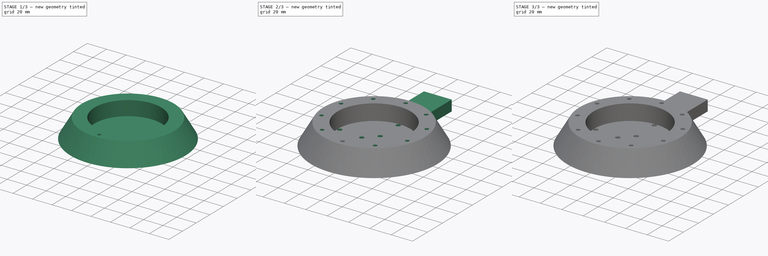
[diagram: build sequence overview — one tinted view per stage of 3, left to right]
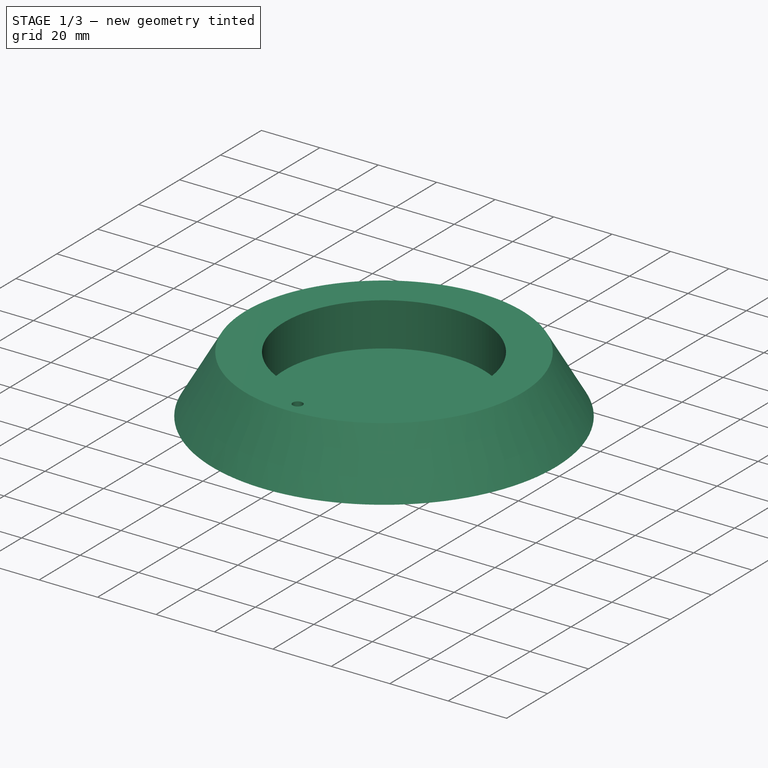
[diagram: stage 1 of 3 — iso view after this stage's code; geometry added in this stage tinted green]
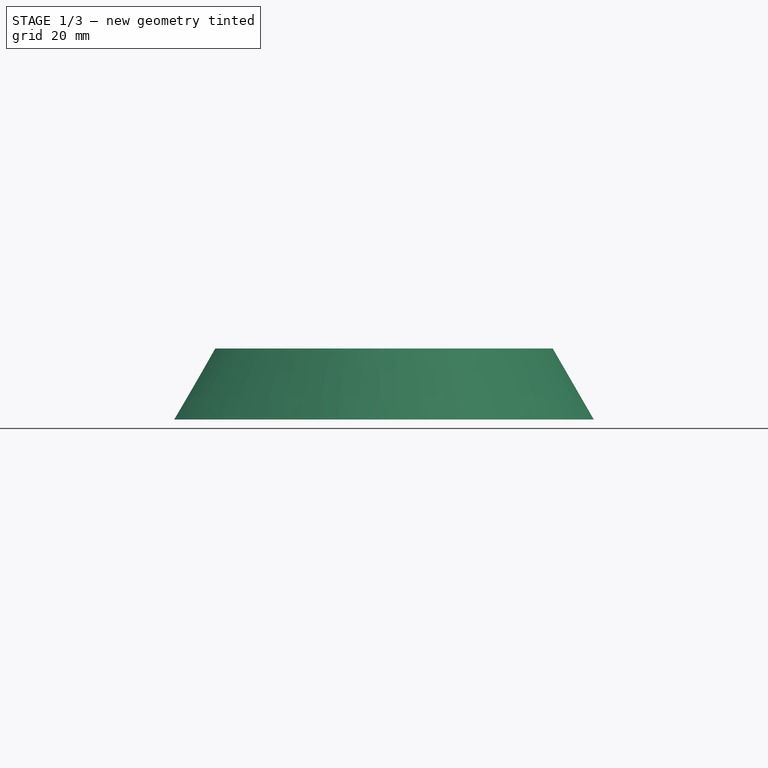
[diagram: stage 1 of 3 — front view after this stage's code; geometry added in this stage tinted green]
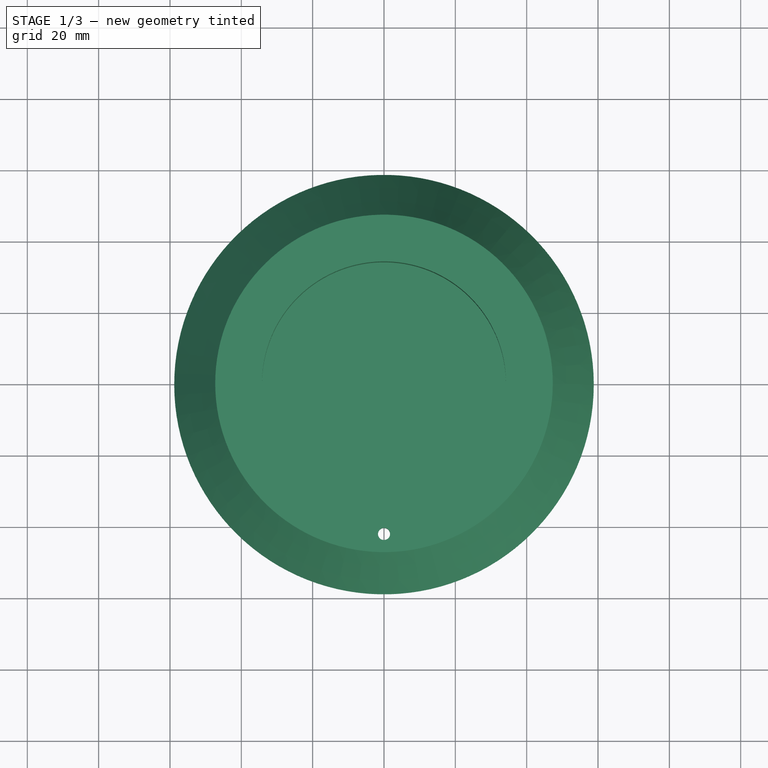
[diagram: stage 1 of 3 — top view after this stage's code; geometry added in this stage tinted green]
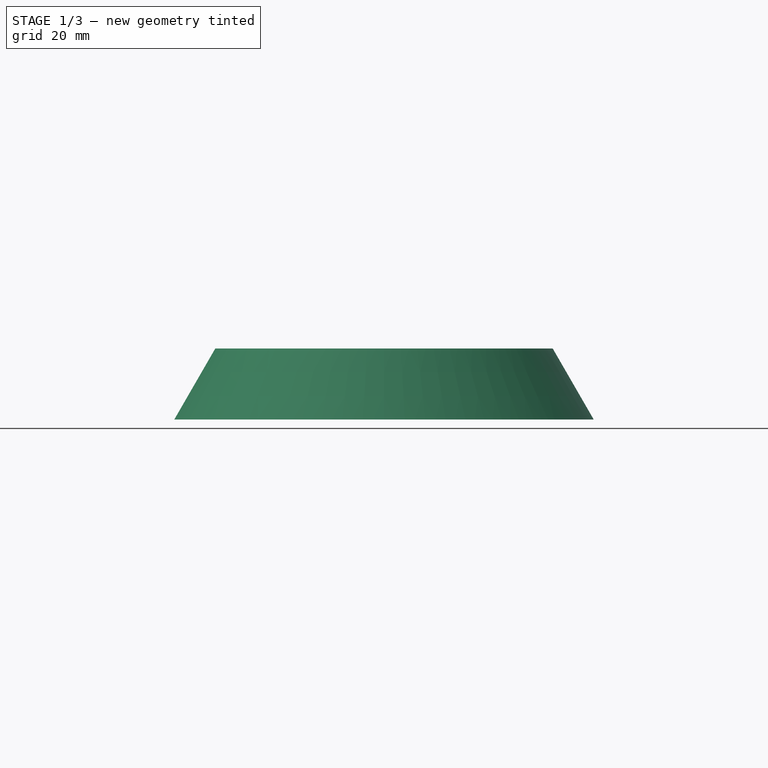
[diagram: stage 1 of 3 — right view after this stage's code; geometry added in this stage tinted green]
FCSTD DOCUMENT  (FreeCAD 1.0R39109 (Git))
Label: Stevensen Base - Custom
Comment: This file was created as a modification of the misol_stevenson_screen_bottom.STL, created by musgos, posted on Thingiverse as item 4153206 and released under a CC BY 4.0 license
License: Creative Commons Attribution-ShareAlike 4.0
LicenseURL: https://creativecommons.org/licenses/by-sa/4.0/
objects: Sketcher::SketchObject×5, PartDesign::Pocket×2, PartDesign::Revolution×1, PartDesign::Hole×1, PartDesign::PolarPattern×1, PartDesign::Pad×1, PartDesign::Fillet×1, PartDesign::Body×1
note: 31 computed .brp shape members not serialized (recipe doc carries the construction recipe); baked Part::Feature solids carry a one-line shape summary decoded from their .brp

FEATURE [Sketcher::SketchObject] Sketch
  ArcFitTolerance = 1e-06
  AttachmentSupport = -> [XZ_Plane]
  FullyConstrained = true
  MakeInternals = false
  MapMode = 5
  Placement = pos=(0,0,0) rot=(1,0,0;1.5708rad)
  sketch-geometry (8):
    g0: LineSegment [constr] StartX=-47.3161 StartY=19.9 StartZ=0 EndX=47.3161 EndY=19.9 EndZ=0
    g1: GeomPoint X=0 Y=19.9 Z=0
    g2: LineSegment StartX=47.3161 StartY=19.9 StartZ=0 EndX=58.81 EndY=0 EndZ=0
    g3: LineSegment StartX=58.81 StartY=0 StartZ=0 EndX=0 EndY=0 EndZ=0
    g4: LineSegment StartX=0 StartY=0 StartZ=0 EndX=0 EndY=5 EndZ=0
    g5: LineSegment StartX=0 StartY=5 StartZ=0 EndX=34.2085 EndY=5 EndZ=0
    g6: LineSegment StartX=34.2085 StartY=5 StartZ=0 EndX=34.2085 EndY=19.9 EndZ=0
    g7: LineSegment StartX=34.2085 StartY=19.9 StartZ=0 EndX=47.3161 EndY=19.9 EndZ=0
  constraints (22):
    c: Horizontal(g0)
    c: Symmetric(g0,g0,g1)
    c: Coincident(g2,g0)
    c: Coincident(g3,g2)
    c: Horizontal(g3)
    c: DistanceX(g3,g3) = 58.81
    c: DistanceY(g3,g1) = 19.9
    c: Angle(g2) = -1.04702
    c: Coincident(g3,g-1)
    c: Coincident(g4,g3)
    c: Horizontal(g5)
    c: Coincident(g6,g5)
    c: PointOnObject(g6,g0)
    c: Vertical(g6)
    c: Coincident(g7,g6)
    c: Coincident(g7,g0)
    c: DistanceY(g4,g4) = 5
    c: Coincident(g5,g4)
    c: Vertical(g4)
    c: PointOnObject(g1,g-2)
    c: DistanceX(g5,g5) = 34.2085
    c: DistanceY(g5,g6) = 14.9
FEATURE [PartDesign::Revolution] Revolution
  Angle = 360
  Angle2 = 60
  Axis = (0,2e-16,1)
  Base = (0,0,0)
  Placement = pos=(0,0,0) rot=(1,0,0;1.5708rad)
  Profile = -> Sketch
  ReferenceAxis = -> Sketch [V_Axis]
  Reversed = true
  Suppressed = false
  Type = 0
FEATURE [Sketcher::SketchObject] Sketch001
  ArcFitTolerance = 1e-06
  AttachmentSupport = -> [Revolution]
  FullyConstrained = true
  MakeInternals = false
  MapMode = 5
  Placement = pos=(0,0,0) rot=(1,0,0;3.14159rad)
  sketch-geometry (1):
    g0: Circle CenterX=0 CenterY=42.2085 CenterZ=0 NormalX=0 NormalY=0 NormalZ=1 AngleXU=0 Radius=2
  constraints (3):
    c: PointOnObject(g0,g-2)
    c: Diameter(g0) = 4
    c: DistanceY(g-1,g0) = 42.2085
FEATURE [PartDesign::Hole] Hole
  BaseFeature = -> Revolution
  CustomThreadClearance = 0
  Depth = 25
  DepthType = 0
  Diameter = 3.4
  DrillForDepth = false
  DrillPoint = 1
  DrillPointAngle = 118
  HoleCutCountersinkAngle = 90
  HoleCutCustomValues = false
  HoleCutDepth = 14.9
  HoleCutDiameter = 6
  HoleCutType = 1
  ModelThread = false
  Placement = pos=(0,0,0) rot=(1,0,0;1.5708rad)
  Profile = -> Sketch001
  Suppressed = false
  Tapered = false
  TaperedAngle = 90
  ThreadClass = 0
  ThreadDepth = 25
  ThreadDepthType = 0
  ThreadDirection = 0
  ThreadFit = 0
  ThreadSize = 0
  ThreadType = 0
  Threaded = false
  UseCustomThreadClearance = false
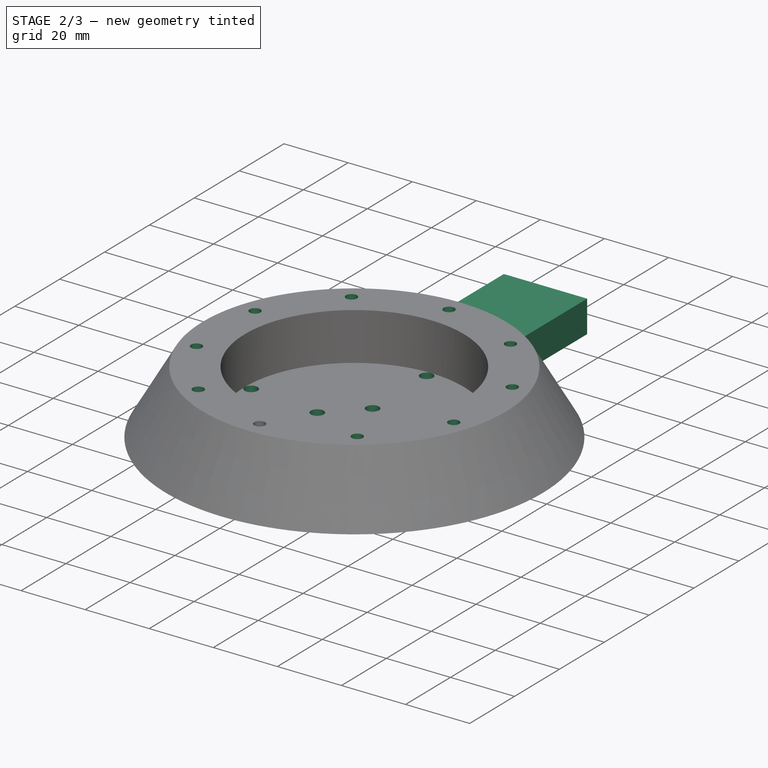
[diagram: stage 2 of 3 — iso view after this stage's code; geometry added in this stage tinted green]
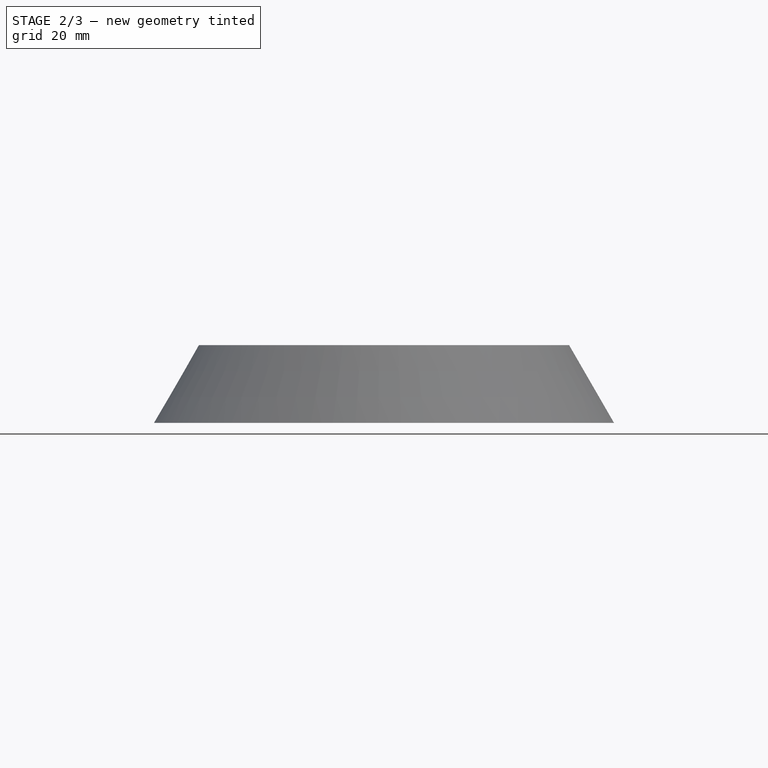
[diagram: stage 2 of 3 — front view after this stage's code; geometry added in this stage tinted green]
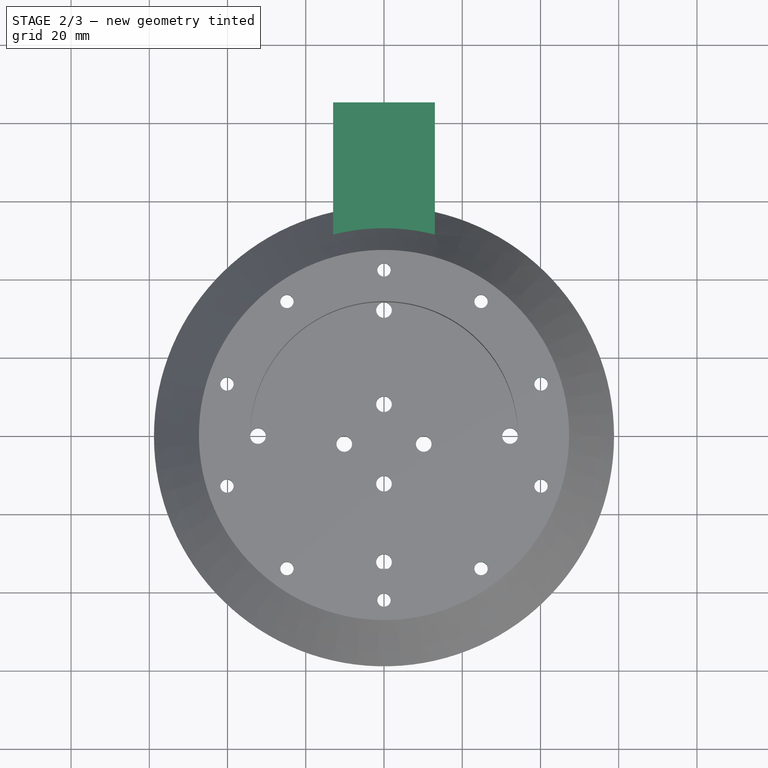
[diagram: stage 2 of 3 — top view after this stage's code; geometry added in this stage tinted green]
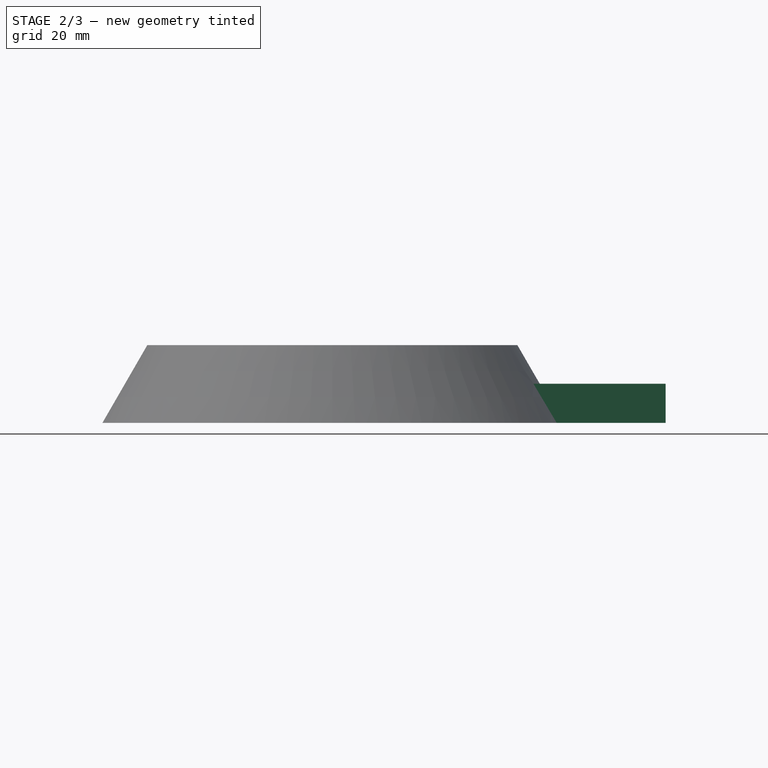
[diagram: stage 2 of 3 — right view after this stage's code; geometry added in this stage tinted green]
FEATURE [PartDesign::PolarPattern] PolarPattern
  Angle = 360
  Axis = -> Sketch001 [N_Axis]
  BaseFeature = -> Hole
  Mode = 0
  Occurrences = 10
  Offset = 120
  Originals = -> [Hole]
  Placement = pos=(0,0,0) rot=(1,0,0;1.5708rad)
  Suppressed = false
  TransformMode = 0
FEATURE [Sketcher::SketchObject] Sketch002
  ArcFitTolerance = 1e-06
  AttachmentOffset = pos=(0,0,-45.2) rot=(0,0,1;0rad)
  AttachmentSupport = -> [XZ_Plane]
  ExternalGeometry = -> [PolarPattern]
  FullyConstrained = true
  MakeInternals = false
  MapMode = 5
  Placement = pos=(0,45.2,-1e-14) rot=(1,0,0;1.5708rad)
  sketch-geometry (5):
    g0: LineSegment StartX=13 StartY=10 StartZ=0 EndX=-13 EndY=10 EndZ=0
    g1: LineSegment StartX=-13 StartY=10 StartZ=0 EndX=-13 EndY=0 EndZ=0
    g2: LineSegment StartX=-13 StartY=0 StartZ=0 EndX=13 EndY=0 EndZ=0
    g3: LineSegment StartX=13 StartY=0 StartZ=0 EndX=13 EndY=10 EndZ=0
    g4: GeomPoint [constr] X=0 Y=5 Z=0
  constraints (13):
    c: Coincident(g0,g1)
    c: Coincident(g1,g2)
    c: Coincident(g2,g3)
    c: Coincident(g3,g0)
    c: Horizontal(g0)
    c: Horizontal(g2)
    c: Vertical(g1)
    c: Vertical(g3)
    c: Symmetric(g2,g0,g4)
    c: PointOnObject(g4,g-2)
    c: Horizontal(g1,g-4)
    c: DistanceX(g2,g2) = 26
    c: DistanceY(g1,g1) = 10
FEATURE [PartDesign::Pad] Pad
  BaseFeature = -> PolarPattern
  Direction = (0,-1,2e-16)
  Length = 40
  Length2 = 10
  Placement = pos=(0,0,0) rot=(1,0,0;1.5708rad)
  Profile = -> Sketch002
  ReferenceAxis = -> Sketch002 [N_Axis]
  Reversed = true
  Suppressed = false
  Type = 0
FEATURE [Sketcher::SketchObject] Sketch003
  ArcFitTolerance = 1e-06
  AttachmentSupport = -> [Pad]
  ExternalGeometry = -> [Pad]
  FullyConstrained = true
  MakeInternals = false
  MapMode = 5
  Placement = pos=(0,2.2e-15,5) rot=(0,0,1;3.14159rad)
  sketch-geometry (17):
    g0: Circle [constr] CenterX=0 CenterY=0 CenterZ=0 NormalX=0 NormalY=0 NormalZ=1 AngleXU=0 Radius=24.622
    g1: LineSegment [constr] StartX=-15.24 StartY=17.27 StartZ=0 EndX=-15.24 EndY=-17.27 EndZ=0
    g2: LineSegment [constr] StartX=-15.24 StartY=-17.27 StartZ=0 EndX=15.24 EndY=-17.27 EndZ=0
    g3: LineSegment [constr] StartX=15.24 StartY=-17.27 StartZ=0 EndX=15.24 EndY=17.27 EndZ=0
    g4: LineSegment [constr] StartX=15.24 StartY=17.27 StartZ=0 EndX=-15.24 EndY=17.27 EndZ=0
    g5: GeomPoint [constr] X=0 Y=0 Z=0
    g6: LineSegment [constr] StartX=-15.24 StartY=-13.21 StartZ=0 EndX=15.24 EndY=-13.21 EndZ=0
    g7: Circle CenterX=0 CenterY=12.19 CenterZ=0 NormalX=0 NormalY=0 NormalZ=1 AngleXU=0 Radius=2
    g8: Circle CenterX=1.1e-15 CenterY=-8.13 CenterZ=0 NormalX=0 NormalY=0 NormalZ=1 AngleXU=0 Radius=2
    g9: Circle CenterX=-10.16 CenterY=2.03 CenterZ=0 NormalX=0 NormalY=0 NormalZ=1 AngleXU=0 Radius=2
    g10: Circle CenterX=10.16 CenterY=2.03 CenterZ=0 NormalX=0 NormalY=0 NormalZ=1 AngleXU=0 Radius=2
    g11: LineSegment [constr] StartX=-15.24 StartY=-13.21 StartZ=0 EndX=15.24 EndY=17.27 EndZ=0
    g12: GeomPoint X=7e-16 Y=2.03 Z=0
    g13: Circle CenterX=0 CenterY=32.2085 CenterZ=0 NormalX=0 NormalY=0 NormalZ=1 AngleXU=0 Radius=2
    g14: Circle CenterX=32.2085 CenterY=0 CenterZ=0 NormalX=0 NormalY=0 NormalZ=1 AngleXU=0 Radius=2
    g15: Circle CenterX=0 CenterY=-32.2085 CenterZ=0 NormalX=0 NormalY=0 NormalZ=1 AngleXU=0 Radius=2
    g16: Circle CenterX=-32.2085 CenterY=0 CenterZ=0 NormalX=0 NormalY=0 NormalZ=1 AngleXU=0 Radius=2
  constraints (43):
    c: Coincident(g0,g-1)
    c: Diameter(g0) = 49.244
    c: Coincident(g1,g2)
    c: Coincident(g2,g3)
    c: Coincident(g3,g4)
    c: Coincident(g4,g1)
    c: Vertical(g1)
    c: Vertical(g3)
    c: Horizontal(g2)
    c: Horizontal(g4)
    c: Symmetric(g3,g1,g5)
    c: Coincident(g5,g0)
    c: DistanceX(g2,g2) = 30.48
    c: DistanceY(g3,g3) = 34.54
    c: PointOnObject(g6,g1)
    c: PointOnObject(g6,g3)
    c: Horizontal(g6)
    c: DistanceY(g2,g6) = 4.06
    c: PointOnObject(g7,g-2)
    c: Equal(g9,g7)
    c: Equal(g7,g10)
    c: Equal(g10,g8)
    c: Diameter(g10) = 4
    c: DistanceX(g1,g9) = 5.08
    c: DistanceY(g7,g1) = 5.08
    c: Coincident(g11,g6)
    c: Coincident(g11,g3)
    c: Symmetric(g11,g11,g12)
    c: Symmetric(g9,g10,g12)
    c: Horizontal(g9,g10)
    c: Symmetric(g8,g7,g12)
    c: PointOnObject(g13,g-2)
    c: PointOnObject(g14,g-1)
    c: PointOnObject(g15,g-2)
    c: PointOnObject(g16,g-1)
    c: Tangent(g16,g-3)
    c: Tangent(g13,g-3)
    c: Tangent(g14,g-3)
    c: Tangent(g15,g-3)
    c: Equal(g16,g15)
    c: Equal(g15,g14)
    c: Equal(g14,g13)
    c: Diameter(g13) = 4
FEATURE [PartDesign::Pocket] Pocket
  BaseFeature = -> Pad
  Direction = (0,0,-1)
  Length = 5
  Length2 = 5
  Placement = pos=(0,0,0) rot=(1,0,0;1.5708rad)
  Profile = -> Sketch003
  ReferenceAxis = -> Sketch003 [N_Axis]
  Suppressed = false
  Type = 1
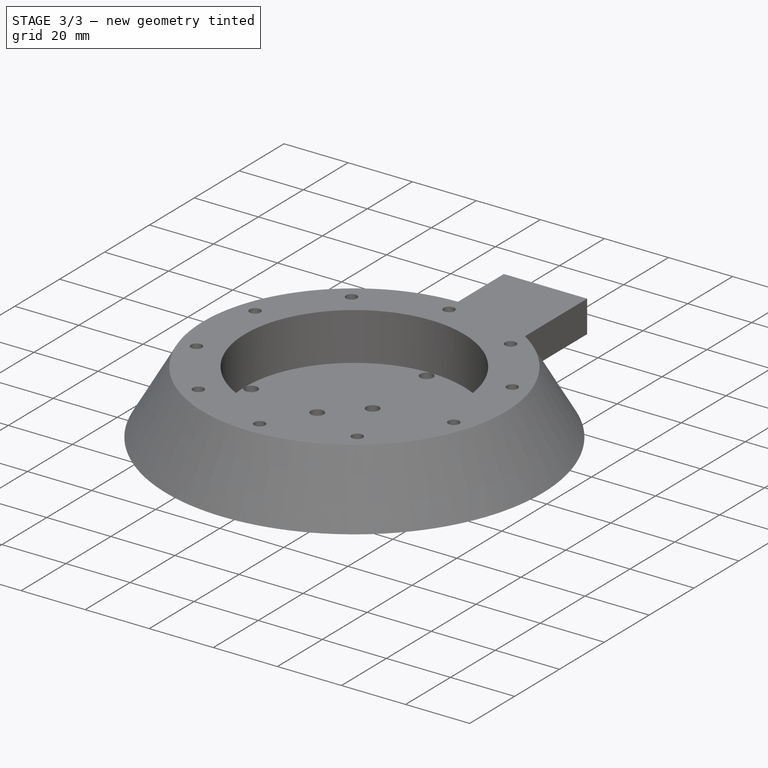
[diagram: stage 3 of 3 — iso view after this stage's code; geometry added in this stage tinted green]
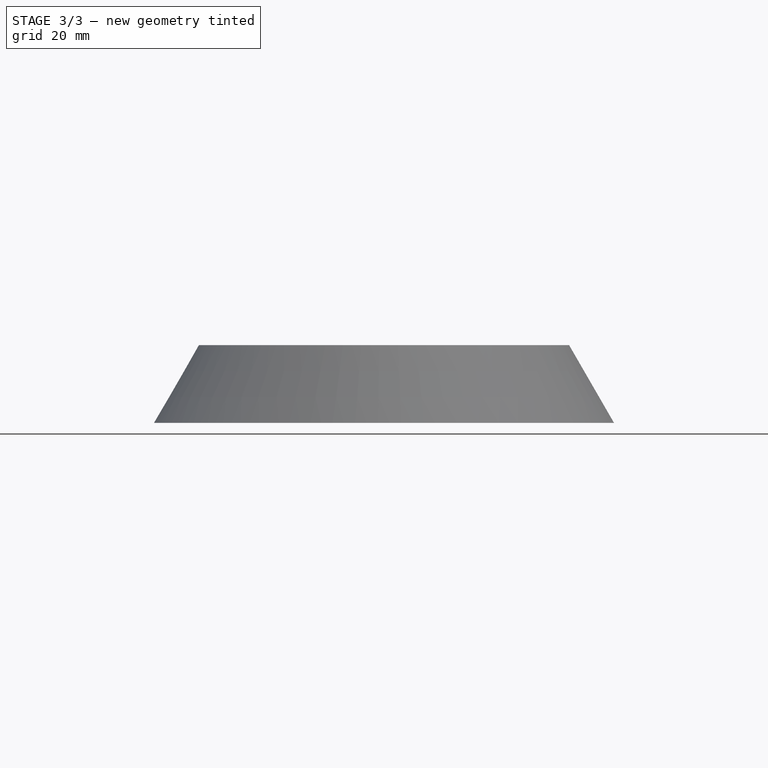
[diagram: stage 3 of 3 — front view after this stage's code; geometry added in this stage tinted green]
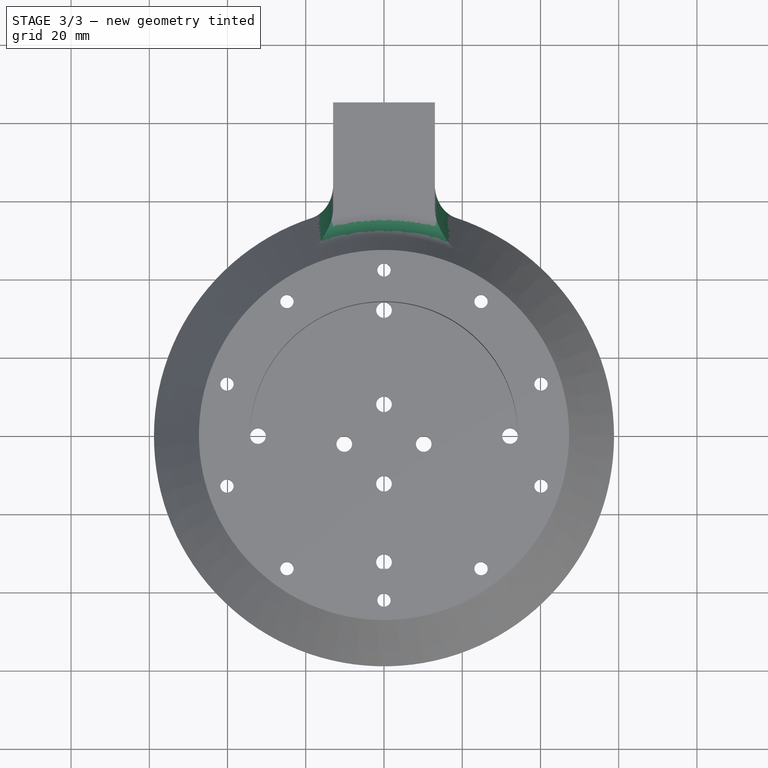
[diagram: stage 3 of 3 — top view after this stage's code; geometry added in this stage tinted green]
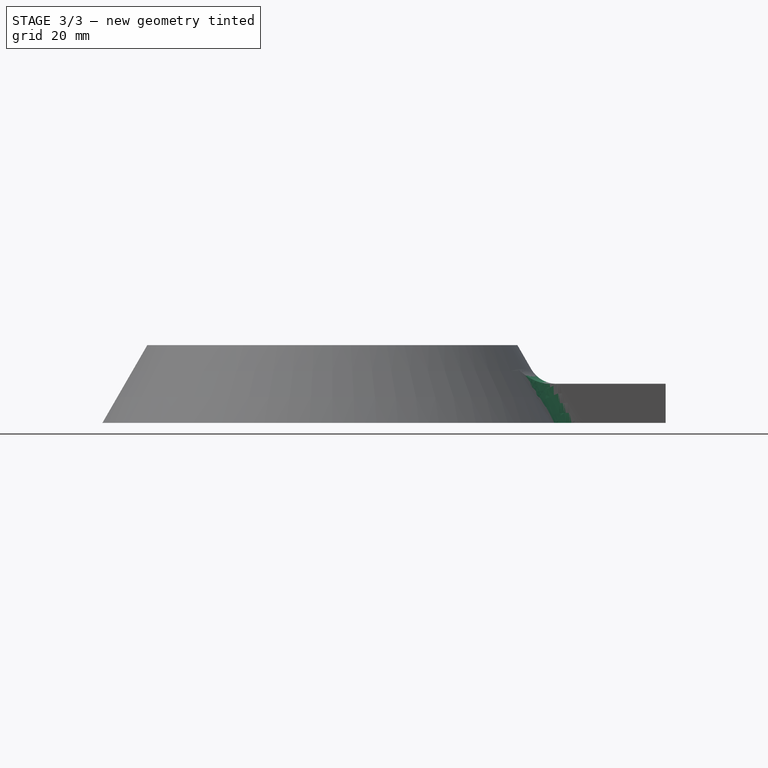
[diagram: stage 3 of 3 — right view after this stage's code; geometry added in this stage tinted green]
FEATURE [PartDesign::Fillet] Fillet
  Base = -> Pocket [Edge5,Edge4,Edge3]
  BaseFeature = -> Pocket
  Placement = pos=(0,0,0) rot=(1,0,0;1.5708rad)
  Radius = 7.5
  SupportTransform = false
  Suppressed = false
  UseAllEdges = false
FEATURE [Sketcher::SketchObject] Sketch005
  ArcFitTolerance = 1e-06
  AttachmentSupport = -> [Fillet]
  ExternalGeometry = -> [Fillet]
  FullyConstrained = true
  MakeInternals = false
  MapMode = 5
  Placement = pos=(0,85.2,0) rot=(-1,0,0;1.5708rad)
  sketch-geometry (3):
    g0: Circle CenterX=-6.5 CenterY=-5 CenterZ=0 NormalX=0 NormalY=0 NormalZ=1 AngleXU=0 Radius=2.8
    g1: Circle CenterX=6.5 CenterY=-5 CenterZ=0 NormalX=0 NormalY=0 NormalZ=1 AngleXU=0 Radius=2.8
    g2: GeomPoint X=13 Y=-5 Z=0
  constraints (9):
    c: Equal(g0,g1)
    c: Diameter(g1) = 5.6
    c: Symmetric(g0,g1,g-2)
    c: DistanceX(g-4,g-4) = 26
    c: DistanceX(g-4,g0) = 6.5
    c: Symmetric(g-5,g-5,g2)
    c: Horizontal(g1,g2)
    c: DistanceY(g-5,g-5) = 10
    c: DistanceX(g0,g1) = 13
FEATURE [PartDesign::Pocket] Pocket001
  BaseFeature = -> Fillet
  Direction = (0,-1,-2e-16)
  Length = 9.1
  Length2 = 5
  Placement = pos=(0,0,0) rot=(1,0,0;1.5708rad)
  Profile = -> Sketch005
  ReferenceAxis = -> Sketch005 [N_Axis]
  Suppressed = false
  Type = 0
FEATURE [PartDesign::Body] Body
  AllowCompound = false
  Group = -> [Sketch,Revolution,Sketch001,Hole,PolarPattern,Sketch002,Pad,Sketch003,Pocket,Fillet,Sketch005,Pocket001]
  Origin = -> Origin
  Tip = -> Pocket001
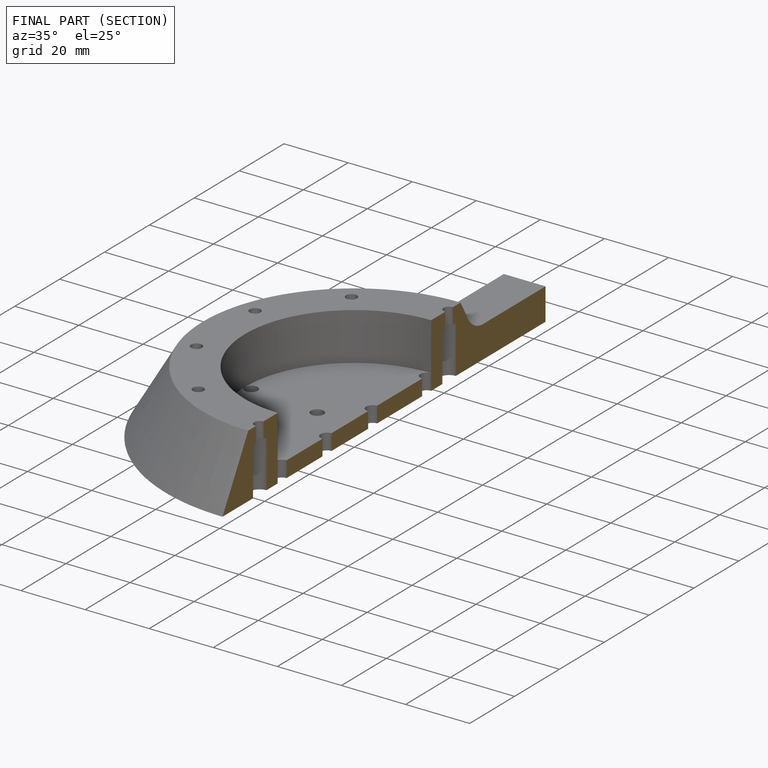
[diagram: finished part — half-section view (interior)]
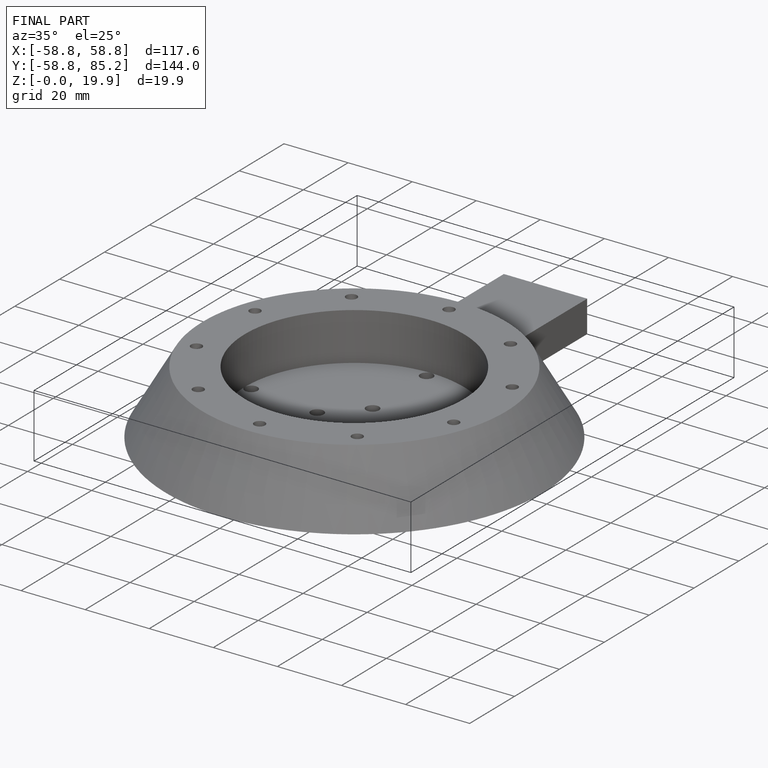
[diagram: finished part — iso view with bounding-box wireframe]
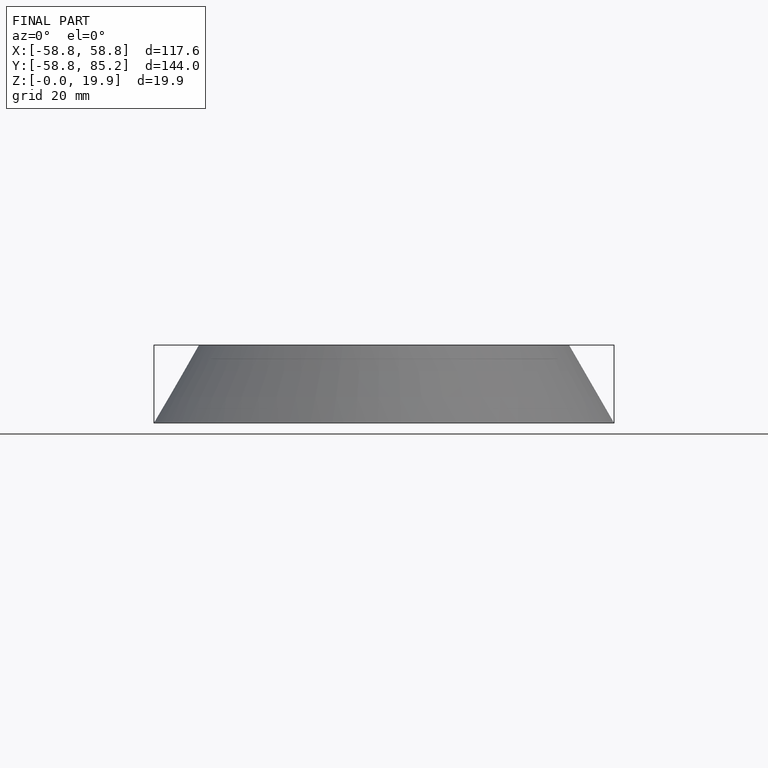
[diagram: finished part — front view with bounding-box wireframe]
